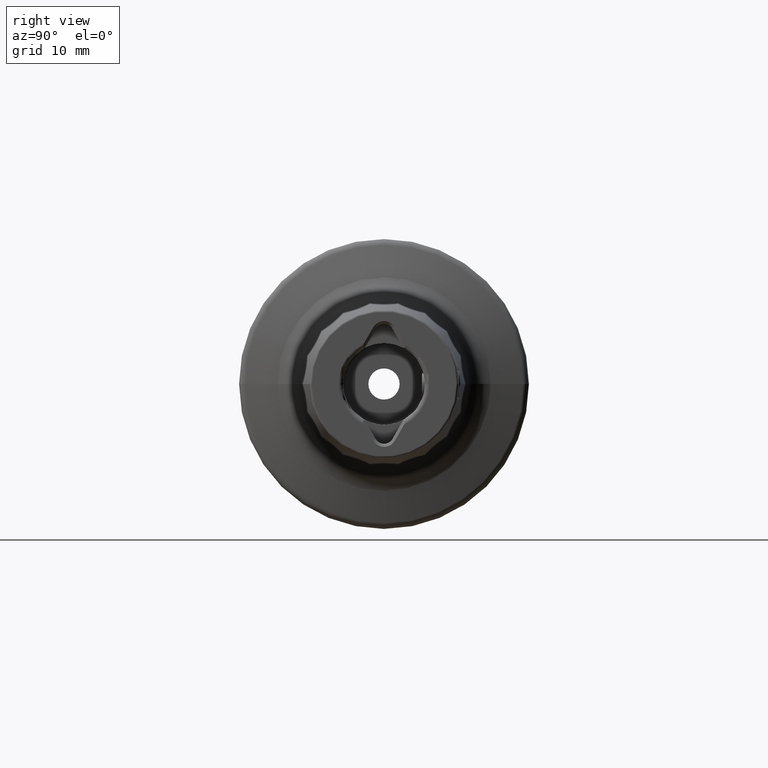
[diagram: clean part render]
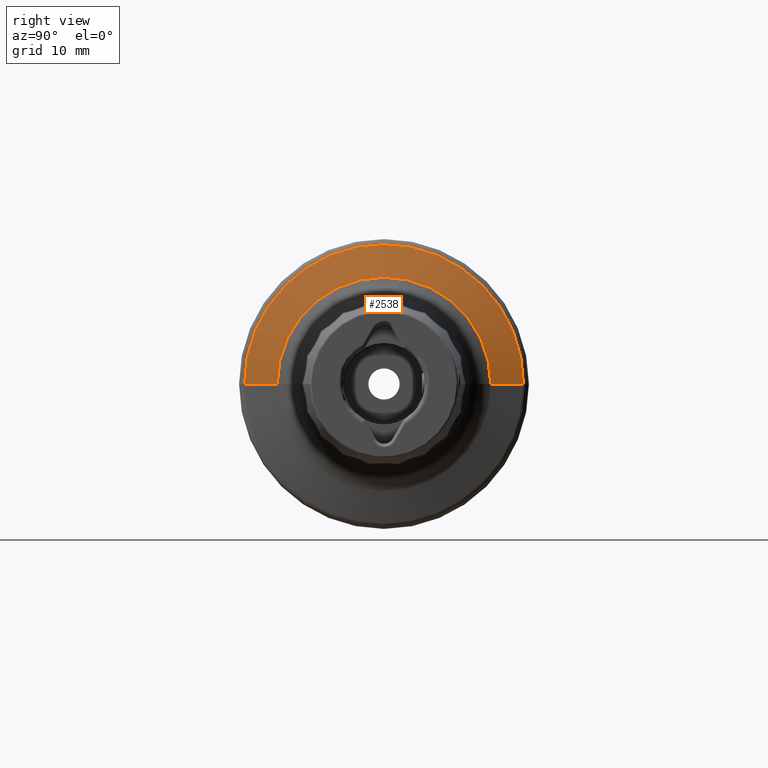
[diagram: same view with one face highlighted and labeled with its STEP entity id]
A machine part, right view. The second image highlights one B-rep face of the part: STEP entity #2538.
In plain terms, the highlighted conical surface has half-angle 75 deg.
Its self-contained STEP definition (entity closure, byte-faithful):
#81 = VERTEX_POINT ( 'NONE', #3462 ) ;
#179 = VERTEX_POINT ( 'NONE', #4233 ) ;
#228 = LINE ( 'NONE', #4569, #291 ) ;
#240 = CARTESIAN_POINT ( 'NONE',  ( 12.14359353944895900, 11.49999999999999500, 1.408343819019455600E-015 ) ) ;
#254 = DIRECTION ( 'NONE',  ( 0.0000000000000000000, -1.000000000000000000, 0.0000000000000000000 ) ) ;
#285 = DIRECTION ( 'NONE',  ( -1.000000000000000000, -1.936199993903306300E-017, 0.0000000000000000000 ) ) ;
#291 = VECTOR ( 'NONE', #4529, 1000.000000000000000 ) ;
#296 = CARTESIAN_POINT ( 'NONE',  ( 11.37604869602543200, 8.416715336412876200E-016, 0.0000000000000000000 ) ) ;
#436 = LINE ( 'NONE', #240, #532 ) ;
#485 = DIRECTION ( 'NONE',  ( -0.2588190451025179600, 0.9659258262890690900, 1.182917971378670800E-016 ) ) ;
#490 = CIRCLE ( 'NONE', #1904, 14.36451635274414500 ) ;
#532 = VECTOR ( 'NONE', #485, 1000.000000000000000 ) ;
#1083 = CARTESIAN_POINT ( 'NONE',  ( 10.19859883831012600, 18.75881904510244900, 2.297292769936912200E-015 ) ) ;
#1100 = EDGE_CURVE ( 'NONE', #179, #81, #490, .T. ) ;
#1112 = EDGE_CURVE ( 'NONE', #81, #2427, #436, .T. ) ;
#1139 = CONICAL_SURFACE ( 'NONE', #1386, 11.49999999999999500, 1.308996938995750100 ) ;
#1203 = EDGE_CURVE ( 'NONE', #179, #3744, #228, .T. ) ;
#1256 = FACE_OUTER_BOUND ( 'NONE', #4852, .T. ) ;
#1386 = AXIS2_PLACEMENT_3D ( 'NONE', #1785, #1801, #1846 ) ;
#1785 = CARTESIAN_POINT ( 'NONE',  ( 12.14359353944895900, 8.565327368528589800E-016, 0.0000000000000000000 ) ) ;
#1801 = DIRECTION ( 'NONE',  ( -1.000000000000000000, -1.936199993903306300E-017, 0.0000000000000000000 ) ) ;
#1819 = ORIENTED_EDGE ( 'NONE', *, *, #1203, .F. ) ;
#1846 = DIRECTION ( 'NONE',  ( 0.0000000000000000000, -1.000000000000000000, 0.0000000000000000000 ) ) ;
#1904 = AXIS2_PLACEMENT_3D ( 'NONE', #296, #285, #254 ) ;
#1949 = ORIENTED_EDGE ( 'NONE', *, *, #3469, .T. ) ;
#2024 = ORIENTED_EDGE ( 'NONE', *, *, #1112, .T. ) ;
#2138 = ORIENTED_EDGE ( 'NONE', *, *, #1100, .T. ) ;
#2427 = VERTEX_POINT ( 'NONE', #1083 ) ;
#2538 = ADVANCED_FACE ( 'NONE', ( #1256 ), #1139, .T. ) ;
#2832 = AXIS2_PLACEMENT_3D ( 'NONE', #2981, #2940, #2865 ) ;
#2865 = DIRECTION ( 'NONE',  ( 0.0000000000000000000, -1.000000000000000000, 0.0000000000000000000 ) ) ;
#2940 = DIRECTION ( 'NONE',  ( 1.000000000000000000, 1.936199993903306300E-017, -0.0000000000000000000 ) ) ;
#2981 = CARTESIAN_POINT ( 'NONE',  ( 10.19859883831012600, 5.843899387608062400E-016, 0.0000000000000000000 ) ) ;
#3462 = CARTESIAN_POINT ( 'NONE',  ( 11.37604869602543200, 14.36451635274414500, 2.028219333602856500E-015 ) ) ;
#3469 = EDGE_CURVE ( 'NONE', #2427, #3744, #4507, .T. ) ;
#3744 = VERTEX_POINT ( 'NONE', #3752 ) ;
#3752 = CARTESIAN_POINT ( 'NONE',  ( 10.19859883831012600, -18.75881904510244500, 0.0000000000000000000 ) ) ;
#4233 = CARTESIAN_POINT ( 'NONE',  ( 11.37604869602543200, -14.36451635274414500, 0.0000000000000000000 ) ) ;
#4507 = CIRCLE ( 'NONE', #2832, 18.75881904510251600 ) ;
#4529 = DIRECTION ( 'NONE',  ( -0.2588190451025179600, -0.9659258262890690900, 0.0000000000000000000 ) ) ;
#4569 = CARTESIAN_POINT ( 'NONE',  ( 12.14359353944895900, -11.49999999999999500, 0.0000000000000000000 ) ) ;
#4852 = EDGE_LOOP ( 'NONE', ( #2138, #2024, #1949, #1819 ) ) ;